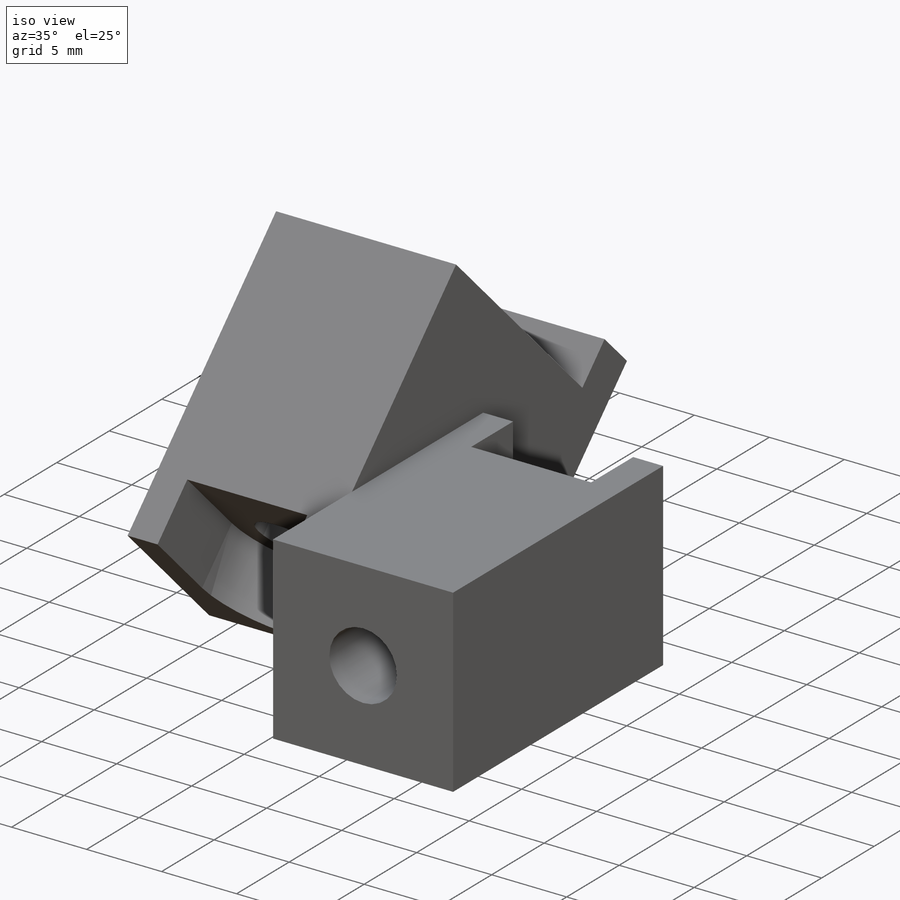
[diagram: iso view]
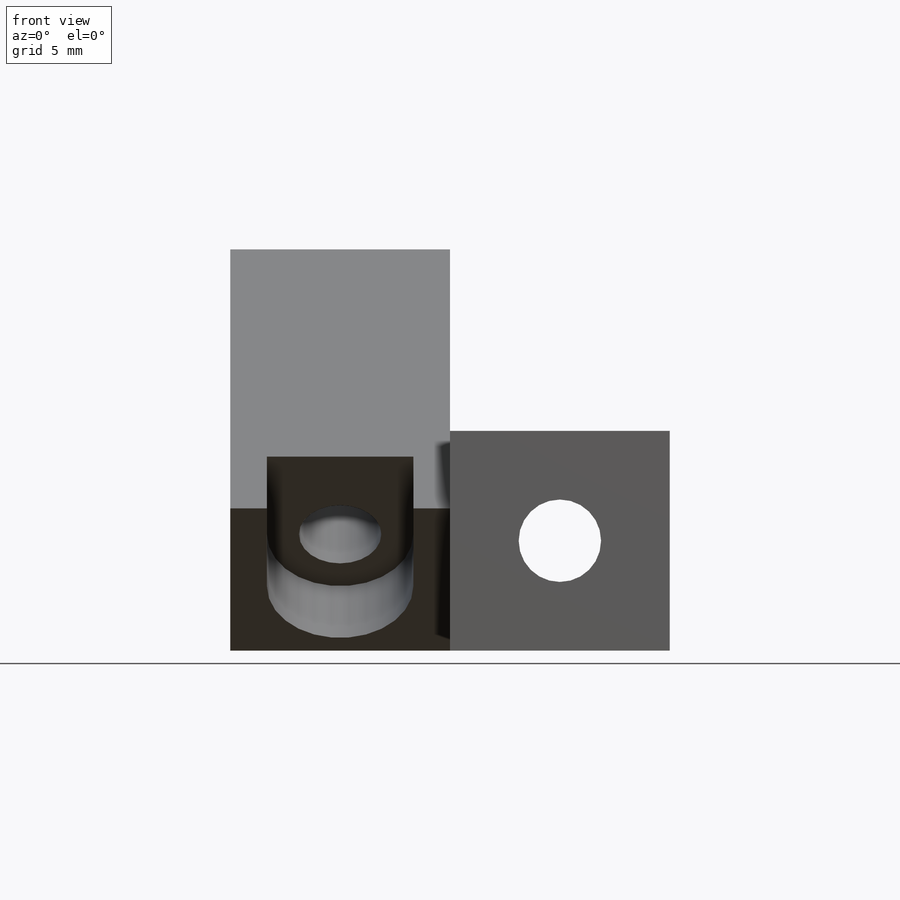
[diagram: front view]
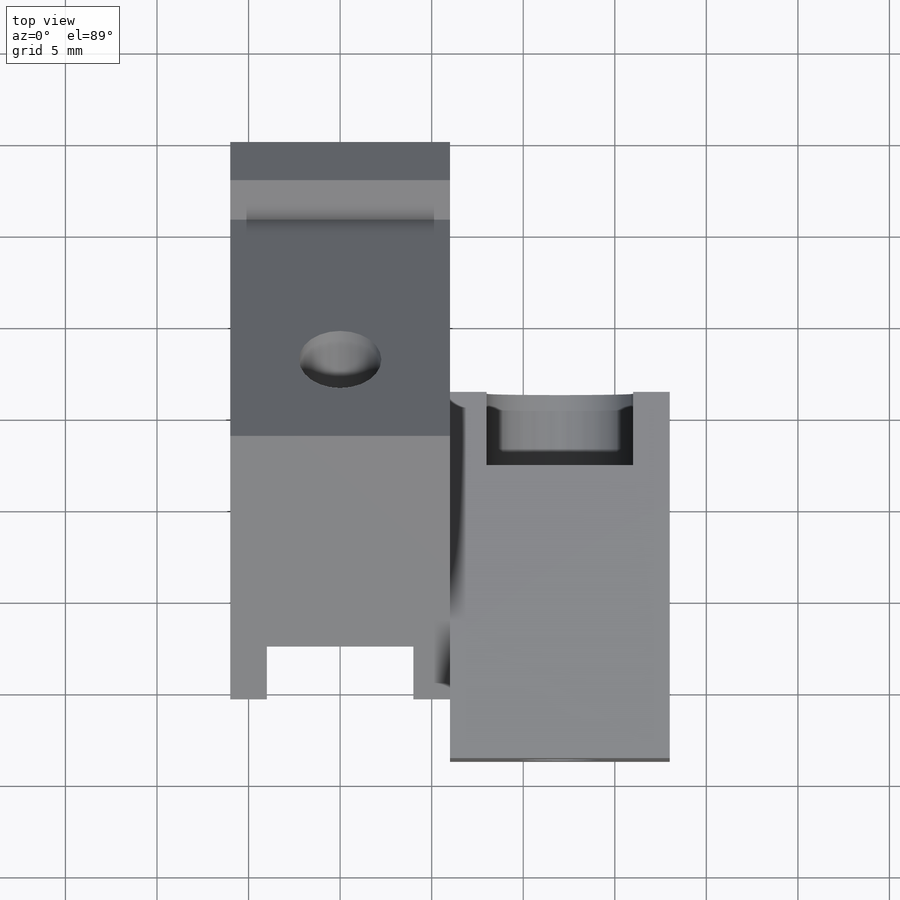
[diagram: top view]
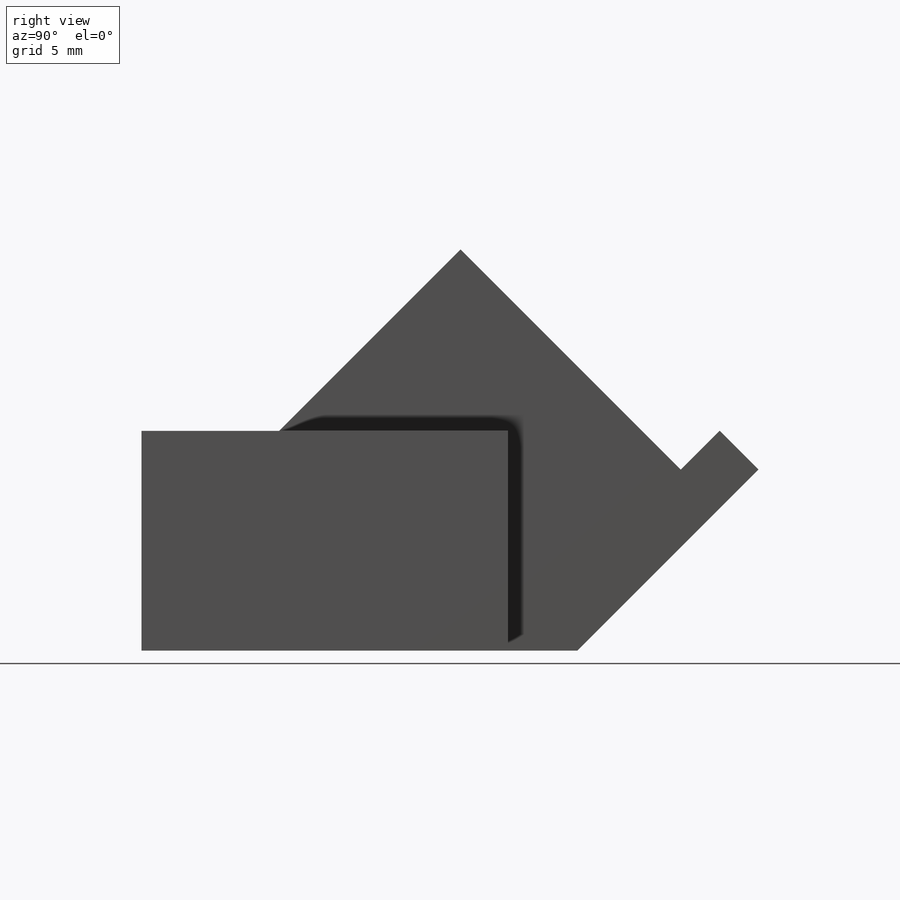
[diagram: right view]
SOLIDWORKS PART (.sldprt)
format: sldprt  version: not decoded by parser v0  size: 283,648 bytes
history: native  units: mm
features: sketch x17, cut_extrude x7, plane x3, extrude x2, material x1, move_body x1 (+13 scaffold rows collapsed; 3 parser-record rows omitted)
feature tree (47):
  scaffold x13  (default folders/planes/origin — collapsed)
  material  "Material <not specified>"
  parser-record x3  (decoder bookkeeping rows leaked as tree rows — omitted from the tree; the rows remain in map.json)
  sketch  "Frame Bolt Hole Axis"  dims[D1=20.0mm]
  sketch  "Case Bolt Hole Axis"  dims[c1.D1=~28.984181mm c2.D1=~18.399198mm c3.D1=~10.898476mm c4.D1=~17.555392mm c5.D1=~16.456494mm c6.D1=45.0deg c6.D2=12.0mm c6.D3=20.0mm c6.D4=3.5mm]
  plane  "Plane1"
  sketch  "Frame Edge for Lip"  dims[D1=10.0mm D2=11.0mm]
  plane  "Plane2"
  sketch  "Case Bolt Hole"  dims[D1=4.5mm D2=~9.564873mm]
  sketch  "Frame Bolt Hole"  dims[D1=4.5mm D2=~8.903599mm]
  plane  "Plane3"
  sketch  "Frame Body Ext Spacing"  dims[D1=2.0mm D2=2.0mm]
  sketch  "Frame Counterbore"  dims[c1.D1=~6.417848mm c2.D1=~5.292101mm c3.D1=6.0mm c4.D1=~1.30272mm c5.D1=6.0mm c6.D1=~0.344983mm c7.D1=~3.62192mm c8.D1=~0.478064mm c9.D1=4.0mm]
  sketch  "Case Counterbore"  dims[c1.D1=~3.730891mm c2.D1=~0.87533mm c3.D1=4.0mm]
  sketch  "Sketch5"  dims[D1=2.0mm D2=2.0mm D3=3.0mm D4=3.0mm]
  extrude  "Frame Body Ext"  [1 undecoded]
  sketch  "Sketch6"  dims[D1=~6.671189mm]
  cut_extrude  "Frame Bolt Cut"  [1 undecoded]
  sketch  "Sketch9"  dims[D1=2.0mm D2=2.0mm]
  extrude  "Case Body Ext"  [1 undecoded]
  sketch  "Sketch10"
  cut_extrude  "Case Bolt Cut"  [1 undecoded]
  sketch  "Sketch14"  dims[D1=~10.186292mm]
  cut_extrude  "Print Plane Cut"  [1 undecoded]
  sketch  "Sketch11"
  cut_extrude  "Case Counterbore Cut"  [1 undecoded]
  sketch  "Sketch7"
  cut_extrude  "Frame Counterbore Cut"  [1 undecoded]
  sketch  "Sketch15"  dims[D1=~3.037185mm]
  cut_extrude  "Frame Counterbore Extension Cut"  [1 undecoded]
  sketch  "Sketch16"  dims[D1=7.5mm]
  cut_extrude  "Case Counterbore Extension Cut"  [1 undecoded]
  move_body  "Rotation onto Print Plane"
decode coverage: 14 of 27 modeling features carry decoded parameters
note: ~ marks probable driven/reference dimensions
note: 9 parameter values undecoded
summary: no parameter record found for 9 features
note: suppression state not decoded; provenance and decode notes live in map.json
